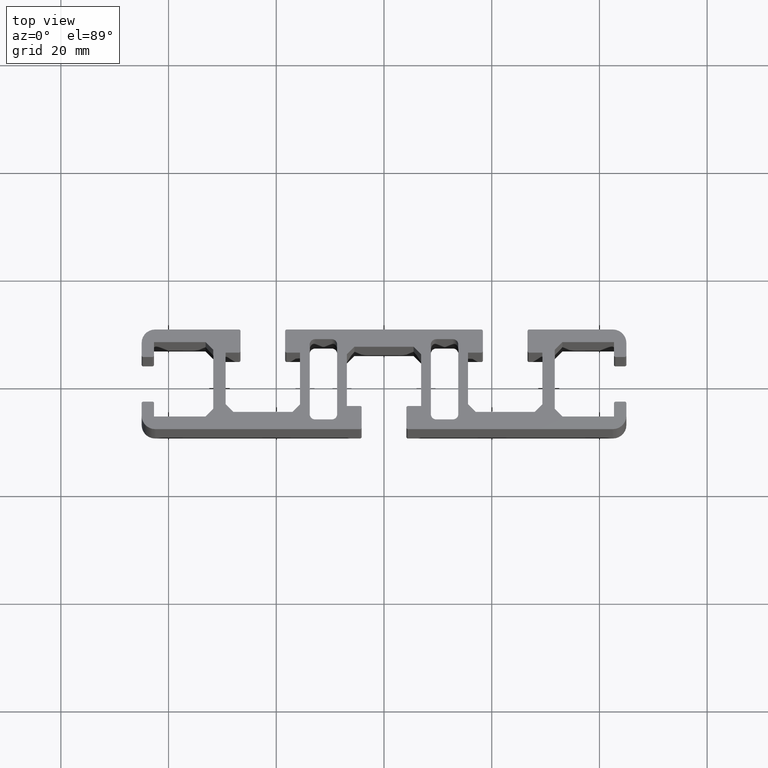
[diagram: clean part render]
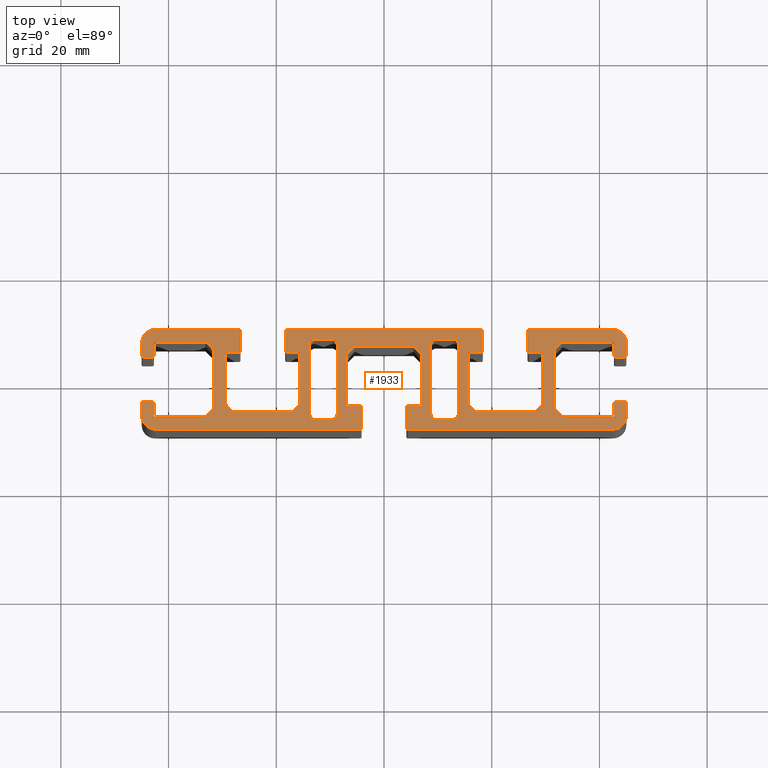
[diagram: same view with one face highlighted and labeled with its STEP entity id]
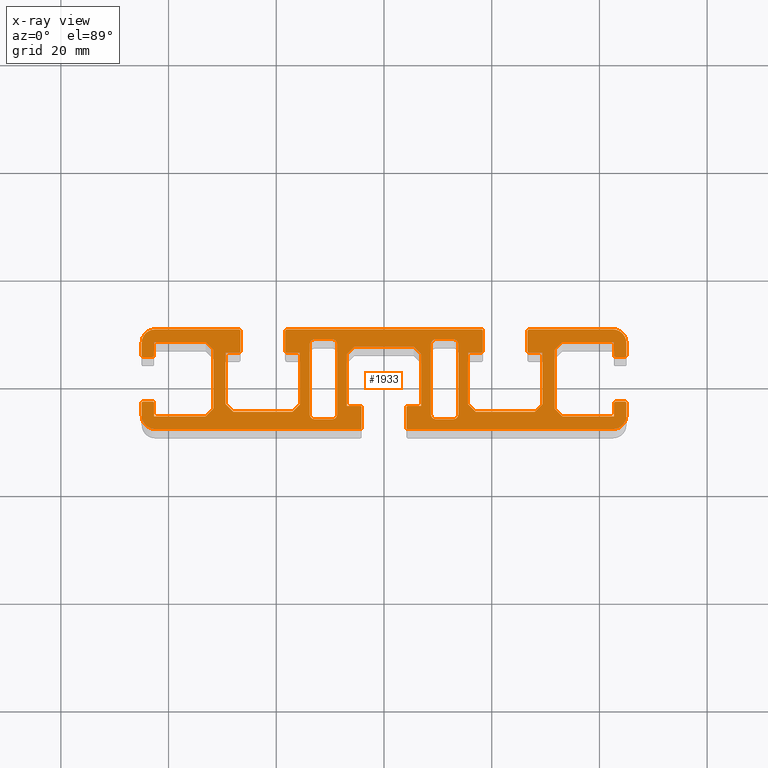
[diagram: x-ray of the same camera — body ghosted, the highlighted face saturated]
A machine part, top view. The second image highlights one B-rep face of the part: STEP entity #1933.
The next image is the same camera in x-ray: the body ghosted, the highlighted face saturated — about 0% of this face is hidden behind the body in this view.
In plain terms, the highlighted planar face has unit normal (0, 0, 1).
Its self-contained STEP definition (entity closure, byte-faithful):
#15=FACE_BOUND('',#268,.T.);
#16=FACE_BOUND('',#269,.T.);
#79=PLANE('',#2087);
#171=FACE_OUTER_BOUND('',#267,.T.);
#267=EDGE_LOOP('',(#1601,#1602,#1603,#1604,#1605,#1606,#1607,#1608,#1609,
#1610,#1611,#1612,#1613,#1614,#1615,#1616,#1617,#1618,#1619,#1620,#1621,
#1622,#1623,#1624,#1625,#1626,#1627,#1628,#1629,#1630,#1631,#1632,#1633,
#1634,#1635,#1636,#1637,#1638,#1639,#1640,#1641,#1642,#1643,#1644,#1645,
#1646,#1647,#1648,#1649,#1650,#1651,#1652,#1653,#1654,#1655,#1656,#1657,
#1658,#1659,#1660,#1661,#1662,#1663,#1664,#1665,#1666,#1667,#1668,#1669,
#1670,#1671,#1672,#1673,#1674,#1675,#1676,#1677,#1678));
#268=EDGE_LOOP('',(#1679,#1680,#1681,#1682,#1683,#1684,#1685,#1686));
#269=EDGE_LOOP('',(#1687,#1688,#1689,#1690,#1691,#1692,#1693,#1694));
#281=LINE('',#2655,#499);
#285=LINE('',#2667,#503);
#289=LINE('',#2679,#507);
#293=LINE('',#2690,#511);
#295=LINE('',#2695,#513);
#299=LINE('',#2703,#517);
#303=LINE('',#2715,#521);
#309=LINE('',#2736,#527);
#313=LINE('',#2748,#531);
#316=LINE('',#2754,#534);
#319=LINE('',#2760,#537);
#322=LINE('',#2766,#540);
#325=LINE('',#2771,#543);
#327=LINE('',#2776,#545);
#331=LINE('',#2784,#549);
#334=LINE('',#2790,#552);
#337=LINE('',#2796,#555);
#340=LINE('',#2802,#558);
#344=LINE('',#2814,#562);
#350=LINE('',#2835,#568);
#354=LINE('',#2847,#572);
#357=LINE('',#2852,#575);
#359=LINE('',#2857,#577);
#363=LINE('',#2865,#581);
#367=LINE('',#2877,#585);
#373=LINE('',#2898,#591);
#377=LINE('',#2910,#595);
#380=LINE('',#2916,#598);
#383=LINE('',#2922,#601);
#386=LINE('',#2928,#604);
#389=LINE('',#2933,#607);
#391=LINE('',#2938,#609);
#395=LINE('',#2946,#613);
#398=LINE('',#2952,#616);
#401=LINE('',#2958,#619);
#404=LINE('',#2964,#622);
#408=LINE('',#2976,#626);
#414=LINE('',#2997,#632);
#418=LINE('',#3009,#636);
#421=LINE('',#3014,#639);
#423=LINE('',#3019,#641);
#427=LINE('',#3027,#645);
#431=LINE('',#3039,#649);
#437=LINE('',#3060,#655);
#441=LINE('',#3072,#659);
#444=LINE('',#3078,#662);
#447=LINE('',#3084,#665);
#450=LINE('',#3090,#668);
#453=LINE('',#3095,#671);
#457=LINE('',#3108,#675);
#461=LINE('',#3120,#679);
#465=LINE('',#3132,#683);
#469=LINE('',#3143,#687);
#473=LINE('',#3150,#691);
#476=LINE('',#3156,#694);
#477=LINE('',#3159,#695);
#482=LINE('',#3168,#700);
#485=LINE('',#3174,#703);
#487=LINE('',#3177,#705);
#488=LINE('',#3180,#706);
#491=LINE('',#3189,#709);
#492=LINE('',#3192,#710);
#499=VECTOR('',#2115,12.900000000008);
#503=VECTOR('',#2127,3.100000000008);
#507=VECTOR('',#2139,12.900000000008);
#511=VECTOR('',#2151,3.100000000008);
#513=VECTOR('',#2155,9.58578600000002);
#517=VECTOR('',#2161,2.45);
#521=VECTOR('',#2173,1.70000000000002);
#527=VECTOR('',#2193,1.70000000000002);
#531=VECTOR('',#2205,2.45);
#534=VECTOR('',#2210,9.58578600000002);
#537=VECTOR('',#2215,1.99999991179124);
#540=VECTOR('',#2220,10.971573);
#543=VECTOR('',#2225,2.0000006188979);
#545=VECTOR('',#2229,1.99999920468434);
#549=VECTOR('',#2235,10.971573);
#552=VECTOR('',#2240,1.99999991179125);
#555=VECTOR('',#2245,9.58578699999999);
#558=VECTOR('',#2250,2.45);
#562=VECTOR('',#2262,1.69999999999999);
#568=VECTOR('',#2282,1.69999999999999);
#572=VECTOR('',#2294,2.45);
#575=VECTOR('',#2299,9.58578699999999);
#577=VECTOR('',#2303,9.585786);
#581=VECTOR('',#2309,2.45000000000002);
#585=VECTOR('',#2321,3.7);
#591=VECTOR('',#2341,3.7);
#595=VECTOR('',#2353,2.45);
#598=VECTOR('',#2358,9.585786);
#601=VECTOR('',#2363,2.00000061889791);
#604=VECTOR('',#2368,10.971572);
#607=VECTOR('',#2373,2.00000061889792);
#609=VECTOR('',#2377,1.99999991179126);
#613=VECTOR('',#2383,10.971572);
#616=VECTOR('',#2388,1.99999991179126);
#619=VECTOR('',#2393,9.58578700000001);
#622=VECTOR('',#2398,2.45000000000001);
#626=VECTOR('',#2410,3.7);
#632=VECTOR('',#2430,3.7);
#636=VECTOR('',#2442,2.44999999999999);
#639=VECTOR('',#2447,9.585787);
#641=VECTOR('',#2451,9.585787);
#645=VECTOR('',#2457,2.45);
#649=VECTOR('',#2469,3.7);
#655=VECTOR('',#2489,3.7);
#659=VECTOR('',#2501,2.45);
#662=VECTOR('',#2506,9.585787);
#665=VECTOR('',#2511,1.99999991179125);
#668=VECTOR('',#2516,10.971572);
#671=VECTOR('',#2521,1.99999991179125);
#675=VECTOR('',#2533,12.900000000008);
#679=VECTOR('',#2545,3.100000000008);
#683=VECTOR('',#2557,12.900000000008);
#687=VECTOR('',#2569,3.100000000008);
#691=VECTOR('',#2575,2.29999999999999);
#694=VECTOR('',#2580,2.29999999999999);
#695=VECTOR('',#2583,2.30000000000059);
#700=VECTOR('',#2590,38.0462799999994);
#703=VECTOR('',#2595,15.5537199999994);
#705=VECTOR('',#2599,36.1);
#706=VECTOR('',#2602,15.5462800000006);
#709=VECTOR('',#2613,38.0537200000006);
#710=VECTOR('',#2616,2.30000000000058);
#715=CIRCLE('',#1944,0.999999999996);
#717=CIRCLE('',#1948,0.999999999996001);
#719=CIRCLE('',#1952,0.999999999996);
#721=CIRCLE('',#1956,0.999999999996);
#723=CIRCLE('',#1962,0.2999999999994);
#725=CIRCLE('',#1966,0.299999999999391);
#727=CIRCLE('',#1969,0.2999999999994);
#729=CIRCLE('',#1973,0.299999999999391);
#731=CIRCLE('',#1986,0.299999999999406);
#733=CIRCLE('',#1990,0.2999999999994);
#735=CIRCLE('',#1993,0.299999999999406);
#737=CIRCLE('',#1997,0.2999999999994);
#739=CIRCLE('',#2004,0.299999999999391);
#741=CIRCLE('',#2008,0.299999999999402);
#743=CIRCLE('',#2011,0.299999999999399);
#745=CIRCLE('',#2015,0.299999999999402);
#747=CIRCLE('',#2028,0.299999999999397);
#749=CIRCLE('',#2032,0.299999999999391);
#751=CIRCLE('',#2035,0.299999999999397);
#753=CIRCLE('',#2039,0.299999999999406);
#755=CIRCLE('',#2046,0.299999999999399);
#757=CIRCLE('',#2050,0.299999999999397);
#759=CIRCLE('',#2053,0.299999999999399);
#761=CIRCLE('',#2057,0.2999999999994);
#763=CIRCLE('',#2065,0.999999999996);
#765=CIRCLE('',#2069,0.999999999996);
#767=CIRCLE('',#2073,0.999999999996);
#769=CIRCLE('',#2077,0.999999999996);
#771=CIRCLE('',#2088,2.50000000000001);
#772=CIRCLE('',#2089,2.50000000000001);
#773=CIRCLE('',#2090,2.49999999999999);
#774=CIRCLE('',#2091,2.50000000000001);
#779=VERTEX_POINT('',#2645);
#780=VERTEX_POINT('',#2646);
#783=VERTEX_POINT('',#2654);
#785=VERTEX_POINT('',#2660);
#787=VERTEX_POINT('',#2666);
#789=VERTEX_POINT('',#2672);
#791=VERTEX_POINT('',#2678);
#793=VERTEX_POINT('',#2684);
#795=VERTEX_POINT('',#2693);
#796=VERTEX_POINT('',#2694);
#799=VERTEX_POINT('',#2702);
#801=VERTEX_POINT('',#2708);
#803=VERTEX_POINT('',#2714);
#805=VERTEX_POINT('',#2720);
#807=VERTEX_POINT('',#2726);
#808=VERTEX_POINT('',#2727);
#811=VERTEX_POINT('',#2735);
#813=VERTEX_POINT('',#2741);
#815=VERTEX_POINT('',#2747);
#817=VERTEX_POINT('',#2753);
#819=VERTEX_POINT('',#2759);
#821=VERTEX_POINT('',#2765);
#823=VERTEX_POINT('',#2774);
#824=VERTEX_POINT('',#2775);
#827=VERTEX_POINT('',#2783);
#829=VERTEX_POINT('',#2789);
#831=VERTEX_POINT('',#2795);
#833=VERTEX_POINT('',#2801);
#835=VERTEX_POINT('',#2807);
#837=VERTEX_POINT('',#2813);
#839=VERTEX_POINT('',#2819);
#841=VERTEX_POINT('',#2825);
#842=VERTEX_POINT('',#2826);
#845=VERTEX_POINT('',#2834);
#847=VERTEX_POINT('',#2840);
#849=VERTEX_POINT('',#2846);
#851=VERTEX_POINT('',#2855);
#852=VERTEX_POINT('',#2856);
#855=VERTEX_POINT('',#2864);
#857=VERTEX_POINT('',#2870);
#859=VERTEX_POINT('',#2876);
#861=VERTEX_POINT('',#2882);
#863=VERTEX_POINT('',#2888);
#864=VERTEX_POINT('',#2889);
#867=VERTEX_POINT('',#2897);
#869=VERTEX_POINT('',#2903);
#871=VERTEX_POINT('',#2909);
#873=VERTEX_POINT('',#2915);
#875=VERTEX_POINT('',#2921);
#877=VERTEX_POINT('',#2927);
#879=VERTEX_POINT('',#2936);
#880=VERTEX_POINT('',#2937);
#883=VERTEX_POINT('',#2945);
#885=VERTEX_POINT('',#2951);
#887=VERTEX_POINT('',#2957);
#889=VERTEX_POINT('',#2963);
#891=VERTEX_POINT('',#2969);
#893=VERTEX_POINT('',#2975);
#895=VERTEX_POINT('',#2981);
#897=VERTEX_POINT('',#2987);
#898=VERTEX_POINT('',#2988);
#901=VERTEX_POINT('',#2996);
#903=VERTEX_POINT('',#3002);
#905=VERTEX_POINT('',#3008);
#907=VERTEX_POINT('',#3017);
#908=VERTEX_POINT('',#3018);
#911=VERTEX_POINT('',#3026);
#913=VERTEX_POINT('',#3032);
#915=VERTEX_POINT('',#3038);
#917=VERTEX_POINT('',#3044);
#919=VERTEX_POINT('',#3050);
#920=VERTEX_POINT('',#3051);
#923=VERTEX_POINT('',#3059);
#925=VERTEX_POINT('',#3065);
#927=VERTEX_POINT('',#3071);
#929=VERTEX_POINT('',#3077);
#931=VERTEX_POINT('',#3083);
#933=VERTEX_POINT('',#3089);
#935=VERTEX_POINT('',#3098);
#936=VERTEX_POINT('',#3099);
#939=VERTEX_POINT('',#3107);
#941=VERTEX_POINT('',#3113);
#943=VERTEX_POINT('',#3119);
#945=VERTEX_POINT('',#3125);
#947=VERTEX_POINT('',#3131);
#949=VERTEX_POINT('',#3137);
#952=VERTEX_POINT('',#3148);
#954=VERTEX_POINT('',#3154);
#955=VERTEX_POINT('',#3158);
#958=VERTEX_POINT('',#3166);
#960=VERTEX_POINT('',#3172);
#961=VERTEX_POINT('',#3179);
#963=VERTEX_POINT('',#3187);
#964=VERTEX_POINT('',#3190);
#967=EDGE_CURVE('',#779,#780,#715,.T.);
#971=EDGE_CURVE('',#780,#783,#281,.T.);
#974=EDGE_CURVE('',#783,#785,#717,.T.);
#977=EDGE_CURVE('',#785,#787,#285,.T.);
#980=EDGE_CURVE('',#787,#789,#719,.T.);
#983=EDGE_CURVE('',#789,#791,#289,.T.);
#986=EDGE_CURVE('',#791,#793,#721,.T.);
#989=EDGE_CURVE('',#793,#779,#293,.T.);
#991=EDGE_CURVE('',#795,#796,#295,.T.);
#995=EDGE_CURVE('',#796,#799,#299,.T.);
#998=EDGE_CURVE('',#799,#801,#723,.T.);
#1001=EDGE_CURVE('',#801,#803,#303,.T.);
#1004=EDGE_CURVE('',#803,#805,#725,.T.);
#1007=EDGE_CURVE('',#807,#808,#727,.T.);
#1011=EDGE_CURVE('',#808,#811,#309,.T.);
#1014=EDGE_CURVE('',#811,#813,#729,.T.);
#1017=EDGE_CURVE('',#813,#815,#313,.T.);
#1020=EDGE_CURVE('',#815,#817,#316,.T.);
#1023=EDGE_CURVE('',#817,#819,#319,.T.);
#1026=EDGE_CURVE('',#819,#821,#322,.T.);
#1029=EDGE_CURVE('',#821,#795,#325,.T.);
#1031=EDGE_CURVE('',#823,#824,#327,.T.);
#1035=EDGE_CURVE('',#827,#823,#331,.T.);
#1038=EDGE_CURVE('',#829,#827,#334,.T.);
#1041=EDGE_CURVE('',#831,#829,#337,.T.);
#1044=EDGE_CURVE('',#833,#831,#340,.T.);
#1047=EDGE_CURVE('',#835,#833,#731,.T.);
#1050=EDGE_CURVE('',#837,#835,#344,.T.);
#1053=EDGE_CURVE('',#839,#837,#733,.T.);
#1056=EDGE_CURVE('',#841,#842,#735,.T.);
#1060=EDGE_CURVE('',#845,#841,#350,.T.);
#1063=EDGE_CURVE('',#847,#845,#737,.T.);
#1066=EDGE_CURVE('',#849,#847,#354,.T.);
#1069=EDGE_CURVE('',#824,#849,#357,.T.);
#1071=EDGE_CURVE('',#851,#852,#359,.T.);
#1075=EDGE_CURVE('',#852,#855,#363,.T.);
#1078=EDGE_CURVE('',#855,#857,#739,.T.);
#1081=EDGE_CURVE('',#857,#859,#367,.T.);
#1084=EDGE_CURVE('',#859,#861,#741,.T.);
#1087=EDGE_CURVE('',#863,#864,#743,.T.);
#1091=EDGE_CURVE('',#864,#867,#373,.T.);
#1094=EDGE_CURVE('',#867,#869,#745,.T.);
#1097=EDGE_CURVE('',#869,#871,#377,.T.);
#1100=EDGE_CURVE('',#871,#873,#380,.T.);
#1103=EDGE_CURVE('',#873,#875,#383,.T.);
#1106=EDGE_CURVE('',#875,#877,#386,.T.);
#1109=EDGE_CURVE('',#877,#851,#389,.T.);
#1111=EDGE_CURVE('',#879,#880,#391,.T.);
#1115=EDGE_CURVE('',#883,#879,#395,.T.);
#1118=EDGE_CURVE('',#885,#883,#398,.T.);
#1121=EDGE_CURVE('',#887,#885,#401,.T.);
#1124=EDGE_CURVE('',#889,#887,#404,.T.);
#1127=EDGE_CURVE('',#891,#889,#747,.T.);
#1130=EDGE_CURVE('',#893,#891,#408,.T.);
#1133=EDGE_CURVE('',#895,#893,#749,.T.);
#1136=EDGE_CURVE('',#897,#898,#751,.T.);
#1140=EDGE_CURVE('',#901,#897,#414,.T.);
#1143=EDGE_CURVE('',#903,#901,#753,.T.);
#1146=EDGE_CURVE('',#905,#903,#418,.T.);
#1149=EDGE_CURVE('',#880,#905,#421,.T.);
#1151=EDGE_CURVE('',#907,#908,#423,.T.);
#1155=EDGE_CURVE('',#908,#911,#427,.T.);
#1158=EDGE_CURVE('',#911,#913,#755,.T.);
#1161=EDGE_CURVE('',#913,#915,#431,.T.);
#1164=EDGE_CURVE('',#915,#917,#757,.T.);
#1167=EDGE_CURVE('',#919,#920,#759,.T.);
#1171=EDGE_CURVE('',#920,#923,#437,.T.);
#1174=EDGE_CURVE('',#923,#925,#761,.T.);
#1177=EDGE_CURVE('',#925,#927,#441,.T.);
#1180=EDGE_CURVE('',#927,#929,#444,.T.);
#1183=EDGE_CURVE('',#929,#931,#447,.T.);
#1186=EDGE_CURVE('',#931,#933,#450,.T.);
#1189=EDGE_CURVE('',#933,#907,#453,.T.);
#1191=EDGE_CURVE('',#935,#936,#763,.T.);
#1195=EDGE_CURVE('',#939,#935,#457,.T.);
#1198=EDGE_CURVE('',#941,#939,#765,.T.);
#1201=EDGE_CURVE('',#943,#941,#461,.T.);
#1204=EDGE_CURVE('',#945,#943,#767,.T.);
#1207=EDGE_CURVE('',#947,#945,#465,.T.);
#1210=EDGE_CURVE('',#949,#947,#769,.T.);
#1213=EDGE_CURVE('',#936,#949,#469,.T.);
#1217=EDGE_CURVE('',#952,#805,#473,.T.);
#1220=EDGE_CURVE('',#954,#842,#476,.T.);
#1221=EDGE_CURVE('',#839,#955,#477,.T.);
#1226=EDGE_CURVE('',#958,#861,#482,.T.);
#1229=EDGE_CURVE('',#960,#917,#485,.T.);
#1231=EDGE_CURVE('',#919,#898,#487,.T.);
#1232=EDGE_CURVE('',#895,#961,#488,.T.);
#1235=EDGE_CURVE('',#961,#952,#771,.T.);
#1236=EDGE_CURVE('',#955,#960,#772,.T.);
#1237=EDGE_CURVE('',#963,#954,#773,.T.);
#1238=EDGE_CURVE('',#863,#963,#491,.T.);
#1239=EDGE_CURVE('',#964,#958,#774,.T.);
#1240=EDGE_CURVE('',#807,#964,#492,.T.);
#1601=ORIENTED_EDGE('',*,*,#1007,.T.);
#1602=ORIENTED_EDGE('',*,*,#1011,.T.);
#1603=ORIENTED_EDGE('',*,*,#1014,.T.);
#1604=ORIENTED_EDGE('',*,*,#1017,.T.);
#1605=ORIENTED_EDGE('',*,*,#1020,.T.);
#1606=ORIENTED_EDGE('',*,*,#1023,.T.);
#1607=ORIENTED_EDGE('',*,*,#1026,.T.);
#1608=ORIENTED_EDGE('',*,*,#1029,.T.);
#1609=ORIENTED_EDGE('',*,*,#991,.T.);
#1610=ORIENTED_EDGE('',*,*,#995,.T.);
#1611=ORIENTED_EDGE('',*,*,#998,.T.);
#1612=ORIENTED_EDGE('',*,*,#1001,.T.);
#1613=ORIENTED_EDGE('',*,*,#1004,.T.);
#1614=ORIENTED_EDGE('',*,*,#1217,.F.);
#1615=ORIENTED_EDGE('',*,*,#1235,.F.);
#1616=ORIENTED_EDGE('',*,*,#1232,.F.);
#1617=ORIENTED_EDGE('',*,*,#1133,.T.);
#1618=ORIENTED_EDGE('',*,*,#1130,.T.);
#1619=ORIENTED_EDGE('',*,*,#1127,.T.);
#1620=ORIENTED_EDGE('',*,*,#1124,.T.);
#1621=ORIENTED_EDGE('',*,*,#1121,.T.);
#1622=ORIENTED_EDGE('',*,*,#1118,.T.);
#1623=ORIENTED_EDGE('',*,*,#1115,.T.);
#1624=ORIENTED_EDGE('',*,*,#1111,.T.);
#1625=ORIENTED_EDGE('',*,*,#1149,.T.);
#1626=ORIENTED_EDGE('',*,*,#1146,.T.);
#1627=ORIENTED_EDGE('',*,*,#1143,.T.);
#1628=ORIENTED_EDGE('',*,*,#1140,.T.);
#1629=ORIENTED_EDGE('',*,*,#1136,.T.);
#1630=ORIENTED_EDGE('',*,*,#1231,.F.);
#1631=ORIENTED_EDGE('',*,*,#1167,.T.);
#1632=ORIENTED_EDGE('',*,*,#1171,.T.);
#1633=ORIENTED_EDGE('',*,*,#1174,.T.);
#1634=ORIENTED_EDGE('',*,*,#1177,.T.);
#1635=ORIENTED_EDGE('',*,*,#1180,.T.);
#1636=ORIENTED_EDGE('',*,*,#1183,.T.);
#1637=ORIENTED_EDGE('',*,*,#1186,.T.);
#1638=ORIENTED_EDGE('',*,*,#1189,.T.);
#1639=ORIENTED_EDGE('',*,*,#1151,.T.);
#1640=ORIENTED_EDGE('',*,*,#1155,.T.);
#1641=ORIENTED_EDGE('',*,*,#1158,.T.);
#1642=ORIENTED_EDGE('',*,*,#1161,.T.);
#1643=ORIENTED_EDGE('',*,*,#1164,.T.);
#1644=ORIENTED_EDGE('',*,*,#1229,.F.);
#1645=ORIENTED_EDGE('',*,*,#1236,.F.);
#1646=ORIENTED_EDGE('',*,*,#1221,.F.);
#1647=ORIENTED_EDGE('',*,*,#1053,.T.);
#1648=ORIENTED_EDGE('',*,*,#1050,.T.);
#1649=ORIENTED_EDGE('',*,*,#1047,.T.);
#1650=ORIENTED_EDGE('',*,*,#1044,.T.);
#1651=ORIENTED_EDGE('',*,*,#1041,.T.);
#1652=ORIENTED_EDGE('',*,*,#1038,.T.);
#1653=ORIENTED_EDGE('',*,*,#1035,.T.);
#1654=ORIENTED_EDGE('',*,*,#1031,.T.);
#1655=ORIENTED_EDGE('',*,*,#1069,.T.);
#1656=ORIENTED_EDGE('',*,*,#1066,.T.);
#1657=ORIENTED_EDGE('',*,*,#1063,.T.);
#1658=ORIENTED_EDGE('',*,*,#1060,.T.);
#1659=ORIENTED_EDGE('',*,*,#1056,.T.);
#1660=ORIENTED_EDGE('',*,*,#1220,.F.);
#1661=ORIENTED_EDGE('',*,*,#1237,.F.);
#1662=ORIENTED_EDGE('',*,*,#1238,.F.);
#1663=ORIENTED_EDGE('',*,*,#1087,.T.);
#1664=ORIENTED_EDGE('',*,*,#1091,.T.);
#1665=ORIENTED_EDGE('',*,*,#1094,.T.);
#1666=ORIENTED_EDGE('',*,*,#1097,.T.);
#1667=ORIENTED_EDGE('',*,*,#1100,.T.);
#1668=ORIENTED_EDGE('',*,*,#1103,.T.);
#1669=ORIENTED_EDGE('',*,*,#1106,.T.);
#1670=ORIENTED_EDGE('',*,*,#1109,.T.);
#1671=ORIENTED_EDGE('',*,*,#1071,.T.);
#1672=ORIENTED_EDGE('',*,*,#1075,.T.);
#1673=ORIENTED_EDGE('',*,*,#1078,.T.);
#1674=ORIENTED_EDGE('',*,*,#1081,.T.);
#1675=ORIENTED_EDGE('',*,*,#1084,.T.);
#1676=ORIENTED_EDGE('',*,*,#1226,.F.);
#1677=ORIENTED_EDGE('',*,*,#1239,.F.);
#1678=ORIENTED_EDGE('',*,*,#1240,.F.);
#1679=ORIENTED_EDGE('',*,*,#1191,.T.);
#1680=ORIENTED_EDGE('',*,*,#1213,.T.);
#1681=ORIENTED_EDGE('',*,*,#1210,.T.);
#1682=ORIENTED_EDGE('',*,*,#1207,.T.);
#1683=ORIENTED_EDGE('',*,*,#1204,.T.);
#1684=ORIENTED_EDGE('',*,*,#1201,.T.);
#1685=ORIENTED_EDGE('',*,*,#1198,.T.);
#1686=ORIENTED_EDGE('',*,*,#1195,.T.);
#1687=ORIENTED_EDGE('',*,*,#967,.T.);
#1688=ORIENTED_EDGE('',*,*,#971,.T.);
#1689=ORIENTED_EDGE('',*,*,#974,.T.);
#1690=ORIENTED_EDGE('',*,*,#977,.T.);
#1691=ORIENTED_EDGE('',*,*,#980,.T.);
#1692=ORIENTED_EDGE('',*,*,#983,.T.);
#1693=ORIENTED_EDGE('',*,*,#986,.T.);
#1694=ORIENTED_EDGE('',*,*,#989,.T.);
#1933=ADVANCED_FACE('',(#171,#15,#16),#79,.T.);
#1944=AXIS2_PLACEMENT_3D('',#2647,#2107,#2108);
#1948=AXIS2_PLACEMENT_3D('',#2661,#2120,#2121);
#1952=AXIS2_PLACEMENT_3D('',#2673,#2132,#2133);
#1956=AXIS2_PLACEMENT_3D('',#2685,#2144,#2145);
#1962=AXIS2_PLACEMENT_3D('',#2709,#2166,#2167);
#1966=AXIS2_PLACEMENT_3D('',#2721,#2178,#2179);
#1969=AXIS2_PLACEMENT_3D('',#2728,#2185,#2186);
#1973=AXIS2_PLACEMENT_3D('',#2742,#2198,#2199);
#1986=AXIS2_PLACEMENT_3D('',#2808,#2255,#2256);
#1990=AXIS2_PLACEMENT_3D('',#2820,#2267,#2268);
#1993=AXIS2_PLACEMENT_3D('',#2827,#2274,#2275);
#1997=AXIS2_PLACEMENT_3D('',#2841,#2287,#2288);
#2004=AXIS2_PLACEMENT_3D('',#2871,#2314,#2315);
#2008=AXIS2_PLACEMENT_3D('',#2883,#2326,#2327);
#2011=AXIS2_PLACEMENT_3D('',#2890,#2333,#2334);
#2015=AXIS2_PLACEMENT_3D('',#2904,#2346,#2347);
#2028=AXIS2_PLACEMENT_3D('',#2970,#2403,#2404);
#2032=AXIS2_PLACEMENT_3D('',#2982,#2415,#2416);
#2035=AXIS2_PLACEMENT_3D('',#2989,#2422,#2423);
#2039=AXIS2_PLACEMENT_3D('',#3003,#2435,#2436);
#2046=AXIS2_PLACEMENT_3D('',#3033,#2462,#2463);
#2050=AXIS2_PLACEMENT_3D('',#3045,#2474,#2475);
#2053=AXIS2_PLACEMENT_3D('',#3052,#2481,#2482);
#2057=AXIS2_PLACEMENT_3D('',#3066,#2494,#2495);
#2065=AXIS2_PLACEMENT_3D('',#3100,#2525,#2526);
#2069=AXIS2_PLACEMENT_3D('',#3114,#2538,#2539);
#2073=AXIS2_PLACEMENT_3D('',#3126,#2550,#2551);
#2077=AXIS2_PLACEMENT_3D('',#3138,#2562,#2563);
#2087=AXIS2_PLACEMENT_3D('',#3184,#2605,#2606);
#2088=AXIS2_PLACEMENT_3D('',#3185,#2607,#2608);
#2089=AXIS2_PLACEMENT_3D('',#3186,#2609,#2610);
#2090=AXIS2_PLACEMENT_3D('',#3188,#2611,#2612);
#2091=AXIS2_PLACEMENT_3D('',#3191,#2614,#2615);
#2107=DIRECTION('center_axis',(0.,0.,-1.));
#2108=DIRECTION('ref_axis',(1.,0.,0.));
#2115=DIRECTION('',(0.,-1.,0.));
#2120=DIRECTION('center_axis',(0.,0.,-1.));
#2121=DIRECTION('ref_axis',(0.,-1.,0.));
#2127=DIRECTION('',(-1.,-3.58136459555578E-16,0.));
#2132=DIRECTION('center_axis',(0.,0.,-1.));
#2133=DIRECTION('ref_axis',(-1.,1.1102230246296E-15,0.));
#2139=DIRECTION('',(0.,1.,0.));
#2144=DIRECTION('center_axis',(0.,0.,-1.));
#2145=DIRECTION('ref_axis',(0.,1.,0.));
#2151=DIRECTION('',(1.,0.,0.));
#2155=DIRECTION('',(1.,0.,0.));
#2161=DIRECTION('',(4.78528781226189E-13,-1.,0.));
#2166=DIRECTION('center_axis',(0.,0.,1.));
#2167=DIRECTION('ref_axis',(1.,-2.00025181603694E-12,0.));
#2173=DIRECTION('',(1.,7.0629776537182E-13,0.));
#2178=DIRECTION('center_axis',(0.,0.,1.));
#2179=DIRECTION('ref_axis',(1.98359847066764E-12,1.,0.));
#2185=DIRECTION('center_axis',(0.,0.,1.));
#2186=DIRECTION('ref_axis',(-1.,4.6259292694158E-14,0.));
#2193=DIRECTION('',(-1.,-7.0629776537182E-13,0.));
#2198=DIRECTION('center_axis',(0.,0.,1.));
#2199=DIRECTION('ref_axis',(-1.95399252334424E-12,-1.,0.));
#2205=DIRECTION('',(0.,-1.,0.));
#2210=DIRECTION('',(-1.,0.,0.));
#2215=DIRECTION('',(-0.707107031186512,0.707106531186495,0.));
#2220=DIRECTION('',(0.,1.,0.));
#2225=DIRECTION('',(0.707106781186544,0.707106781186551,0.));
#2229=DIRECTION('',(-0.707106781186549,-0.707106781186546,0.));
#2235=DIRECTION('',(0.,-1.,0.));
#2240=DIRECTION('',(0.707106531186492,-0.707107031186514,0.));
#2245=DIRECTION('',(1.,0.,0.));
#2250=DIRECTION('',(0.,1.,0.));
#2255=DIRECTION('center_axis',(0.,0.,1.));
#2256=DIRECTION('ref_axis',(2.01320441799094E-12,1.,0.));
#2262=DIRECTION('',(1.,7.04338548269552E-13,0.));
#2267=DIRECTION('center_axis',(0.,0.,1.));
#2268=DIRECTION('ref_axis',(1.,2.40548322009664E-14,0.));
#2274=DIRECTION('center_axis',(0.,0.,1.));
#2275=DIRECTION('ref_axis',(-2.01320441799094E-12,-1.,0.));
#2282=DIRECTION('',(-1.,-7.06297765371831E-13,0.));
#2287=DIRECTION('center_axis',(0.,0.,1.));
#2288=DIRECTION('ref_axis',(-1.,2.00210218774465E-12,0.));
#2294=DIRECTION('',(-4.9302965338456E-13,1.,0.));
#2299=DIRECTION('',(-1.,0.,0.));
#2303=DIRECTION('',(0.,-1.,0.));
#2309=DIRECTION('',(-1.,-4.91443620492234E-13,0.));
#2314=DIRECTION('center_axis',(0.,0.,1.));
#2315=DIRECTION('ref_axis',(-1.97249624042136E-12,-1.,0.));
#2321=DIRECTION('',(3.19714225064353E-13,-1.,0.));
#2326=DIRECTION('center_axis',(0.,0.,1.));
#2327=DIRECTION('ref_axis',(1.,-2.00950367457554E-12,0.));
#2333=DIRECTION('center_axis',(0.,0.,1.));
#2334=DIRECTION('ref_axis',(-4.2558549277213E-14,1.,0.));
#2341=DIRECTION('',(-3.23615008664387E-13,1.,0.));
#2346=DIRECTION('center_axis',(0.,0.,1.));
#2347=DIRECTION('ref_axis',(-1.,2.00580293116012E-12,0.));
#2353=DIRECTION('',(-1.,0.,0.));
#2358=DIRECTION('',(0.,1.,0.));
#2363=DIRECTION('',(0.707106781186548,0.707106781186547,0.));
#2368=DIRECTION('',(1.,0.,0.));
#2373=DIRECTION('',(0.707106781186551,-0.707106781186544,0.));
#2377=DIRECTION('',(-0.707107031186519,0.707106531186488,0.));
#2383=DIRECTION('',(-1.,0.,0.));
#2388=DIRECTION('',(-0.707107031186519,-0.707106531186488,0.));
#2393=DIRECTION('',(0.,-1.,0.));
#2398=DIRECTION('',(1.,-6.79728382423561E-16,0.));
#2403=DIRECTION('center_axis',(0.,0.,1.));
#2404=DIRECTION('ref_axis',(1.,-1.99470070091386E-12,0.));
#2410=DIRECTION('',(3.19264134648964E-13,-1.,0.));
#2415=DIRECTION('center_axis',(0.,0.,1.));
#2416=DIRECTION('ref_axis',(-1.48029736621324E-14,-1.,0.));
#2422=DIRECTION('center_axis',(0.,0.,1.));
#2423=DIRECTION('ref_axis',(-1.,1.99470070091388E-12,0.));
#2430=DIRECTION('',(-3.27665822402884E-13,1.,0.));
#2435=DIRECTION('center_axis',(0.,0.,1.));
#2436=DIRECTION('ref_axis',(2.01320441799094E-12,1.,0.));
#2442=DIRECTION('',(1.,4.88498130835071E-13,0.));
#2447=DIRECTION('',(0.,1.,0.));
#2451=DIRECTION('',(0.,1.,0.));
#2457=DIRECTION('',(1.,4.91443620492238E-13,0.));
#2462=DIRECTION('center_axis',(0.,0.,1.));
#2463=DIRECTION('ref_axis',(1.98359847066759E-12,1.,0.));
#2469=DIRECTION('',(-3.24065099079776E-13,1.,0.));
#2474=DIRECTION('center_axis',(0.,0.,1.));
#2475=DIRECTION('ref_axis',(-1.,1.99470070091389E-12,0.));
#2481=DIRECTION('center_axis',(0.,0.,1.));
#2482=DIRECTION('ref_axis',(-5.18104078174654E-14,-1.,0.));
#2489=DIRECTION('',(3.24065099079776E-13,-1.,0.));
#2494=DIRECTION('center_axis',(0.,0.,1.));
#2495=DIRECTION('ref_axis',(1.,-2.00580293116014E-12,0.));
#2501=DIRECTION('',(1.,-6.79728382423564E-16,0.));
#2506=DIRECTION('',(0.,-1.,0.));
#2511=DIRECTION('',(-0.707107031186514,-0.707106531186493,0.));
#2516=DIRECTION('',(-1.,0.,0.));
#2521=DIRECTION('',(-0.707107031186513,0.707106531186493,0.));
#2525=DIRECTION('center_axis',(0.,0.,-1.));
#2526=DIRECTION('ref_axis',(0.,1.,0.));
#2533=DIRECTION('',(0.,1.,0.));
#2538=DIRECTION('center_axis',(0.,0.,-1.));
#2539=DIRECTION('ref_axis',(-1.,0.,0.));
#2545=DIRECTION('',(-1.,3.58136459555578E-16,0.));
#2550=DIRECTION('center_axis',(0.,0.,-1.));
#2551=DIRECTION('ref_axis',(0.,-1.,0.));
#2557=DIRECTION('',(0.,-1.,0.));
#2562=DIRECTION('center_axis',(0.,0.,-1.));
#2563=DIRECTION('ref_axis',(1.,-1.1102230246296E-15,0.));
#2569=DIRECTION('',(1.,0.,0.));
#2575=DIRECTION('',(0.,-1.,0.));
#2580=DIRECTION('',(0.,1.,0.));
#2583=DIRECTION('',(0.,1.,0.));
#2590=DIRECTION('',(-1.,0.,0.));
#2595=DIRECTION('',(1.,0.,0.));
#2599=DIRECTION('',(1.,0.,0.));
#2602=DIRECTION('',(1.,0.,0.));
#2605=DIRECTION('center_axis',(0.,0.,1.));
#2606=DIRECTION('ref_axis',(1.,0.,0.));
#2607=DIRECTION('center_axis',(0.,0.,-1.));
#2608=DIRECTION('ref_axis',(-1.,0.,0.));
#2609=DIRECTION('center_axis',(0.,0.,-1.));
#2610=DIRECTION('ref_axis',(0.,-1.,0.));
#2611=DIRECTION('center_axis',(0.,0.,-1.));
#2612=DIRECTION('ref_axis',(1.,0.,0.));
#2613=DIRECTION('',(-1.,0.,0.));
#2614=DIRECTION('center_axis',(0.,0.,-1.));
#2615=DIRECTION('ref_axis',(0.,1.,0.));
#2616=DIRECTION('',(0.,-1.,0.));
#2645=CARTESIAN_POINT('',(-9.69627999999599,7.45,100.));
#2646=CARTESIAN_POINT('',(-8.69627999999999,6.450000000004,100.));
#2647=CARTESIAN_POINT('Origin',(-9.69627999999599,6.450000000004,100.));
#2654=CARTESIAN_POINT('',(-8.69627999999999,-6.450000000004,100.));
#2655=CARTESIAN_POINT('',(-8.69627999999999,3.225000000002,100.));
#2660=CARTESIAN_POINT('',(-9.69627999999599,-7.45,100.));
#2661=CARTESIAN_POINT('Origin',(-9.69627999999599,-6.450000000004,100.));
#2666=CARTESIAN_POINT('',(-12.796280000004,-7.45,100.));
#2667=CARTESIAN_POINT('',(-4.84813999999799,-7.44999999999999,100.));
#2672=CARTESIAN_POINT('',(-13.79628,-6.450000000004,100.));
#2673=CARTESIAN_POINT('Origin',(-12.796280000004,-6.450000000004,100.));
#2678=CARTESIAN_POINT('',(-13.79628,6.450000000004,100.));
#2679=CARTESIAN_POINT('',(-13.79628,-3.225000000002,100.));
#2684=CARTESIAN_POINT('',(-12.796280000004,7.45,100.));
#2685=CARTESIAN_POINT('Origin',(-12.796280000004,6.450000000004,100.));
#2690=CARTESIAN_POINT('',(-6.398140000002,7.45,100.));
#2693=CARTESIAN_POINT('',(33.114214,6.90000000000001,100.));
#2694=CARTESIAN_POINT('',(42.7,6.90000000000001,100.));
#2695=CARTESIAN_POINT('',(16.557107,6.90000000000001,100.));
#2702=CARTESIAN_POINT('',(42.7000000000012,4.45,100.));
#2703=CARTESIAN_POINT('',(42.7000000000017,3.45000000001022,100.));
#2708=CARTESIAN_POINT('',(43.,4.15,100.));
#2709=CARTESIAN_POINT('Origin',(43.0000000000006,4.4499999999994,100.));
#2714=CARTESIAN_POINT('',(44.7,4.1500000000012,100.));
#2715=CARTESIAN_POINT('',(21.4999999999985,4.14999999998482,100.));
#2720=CARTESIAN_POINT('',(44.99999999999,4.45,100.));
#2721=CARTESIAN_POINT('Origin',(44.7000000000006,4.45000000000059,100.));
#2726=CARTESIAN_POINT('',(44.9999999999901,-4.44999999999942,100.));
#2727=CARTESIAN_POINT('',(44.7,-4.15,100.));
#2728=CARTESIAN_POINT('Origin',(44.6999999999994,-4.4499999999994,100.));
#2735=CARTESIAN_POINT('',(43.,-4.1500000000012,100.));
#2736=CARTESIAN_POINT('',(22.3500000000015,-4.15000000001579,100.));
#2741=CARTESIAN_POINT('',(42.7,-4.45,100.));
#2742=CARTESIAN_POINT('Origin',(42.9999999999994,-4.45000000000059,100.));
#2747=CARTESIAN_POINT('',(42.7,-6.9,100.));
#2748=CARTESIAN_POINT('',(42.7,-2.225,100.));
#2753=CARTESIAN_POINT('',(33.114214,-6.9,100.));
#2754=CARTESIAN_POINT('',(21.35,-6.9,100.));
#2759=CARTESIAN_POINT('',(31.7,-5.485787,100.));
#2760=CARTESIAN_POINT('',(23.1106546461789,3.10355228023869,100.));
#2765=CARTESIAN_POINT('',(31.7,5.485786,100.));
#2766=CARTESIAN_POINT('',(31.7,-2.7428935,100.));
#2771=CARTESIAN_POINT('',(22.4035535000001,-3.81066050000001,100.));
#2774=CARTESIAN_POINT('',(-31.7,-5.48578699999999,100.));
#2775=CARTESIAN_POINT('',(-33.114213,-6.89999999999999,100.));
#2776=CARTESIAN_POINT('',(-22.40355325,3.81065974999999,100.));
#2783=CARTESIAN_POINT('',(-31.7,5.485786,100.));
#2784=CARTESIAN_POINT('',(-31.7,2.742893,100.));
#2789=CARTESIAN_POINT('',(-33.114213,6.90000000000001,100.));
#2790=CARTESIAN_POINT('',(-23.1106656038218,-3.10355446975718,100.));
#2795=CARTESIAN_POINT('',(-42.7,6.90000000000001,100.));
#2796=CARTESIAN_POINT('',(-21.35,6.90000000000001,100.));
#2801=CARTESIAN_POINT('',(-42.7,4.45,100.));
#2802=CARTESIAN_POINT('',(-42.7,2.225,100.));
#2807=CARTESIAN_POINT('',(-43.,4.1500000000012,100.));
#2808=CARTESIAN_POINT('Origin',(-42.9999999999994,4.45000000000061,100.));
#2813=CARTESIAN_POINT('',(-44.7,4.15000000000001,100.));
#2814=CARTESIAN_POINT('',(-22.3500000000015,4.15000000001575,100.));
#2819=CARTESIAN_POINT('',(-44.99999999999,4.4499999999994,100.));
#2820=CARTESIAN_POINT('Origin',(-44.6999999999994,4.44999999999941,100.));
#2825=CARTESIAN_POINT('',(-44.7,-4.1500000000012,100.));
#2826=CARTESIAN_POINT('',(-44.99999999999,-4.45,100.));
#2827=CARTESIAN_POINT('Origin',(-44.7000000000006,-4.4500000000006,100.));
#2834=CARTESIAN_POINT('',(-43.,-4.15,100.));
#2835=CARTESIAN_POINT('',(-21.4999999999985,-4.14999999998481,100.));
#2840=CARTESIAN_POINT('',(-42.7000000000012,-4.45,100.));
#2841=CARTESIAN_POINT('Origin',(-43.0000000000006,-4.4499999999994,100.));
#2846=CARTESIAN_POINT('',(-42.7,-6.89999999999999,100.));
#2847=CARTESIAN_POINT('',(-42.7000000000017,-3.45000000001052,100.));
#2852=CARTESIAN_POINT('',(-16.5571065,-6.89999999999999,100.));
#2855=CARTESIAN_POINT('',(6.90372000000002,4.635786,100.));
#2856=CARTESIAN_POINT('',(6.90372000000002,-4.95,100.));
#2857=CARTESIAN_POINT('',(6.90372000000002,2.317893,100.));
#2864=CARTESIAN_POINT('',(4.45372,-4.9500000000012,100.));
#2865=CARTESIAN_POINT('',(3.45186000000123,-4.95000000000169,100.));
#2870=CARTESIAN_POINT('',(4.15372000000002,-5.25,100.));
#2871=CARTESIAN_POINT('Origin',(4.45371999999941,-5.25000000000059,100.));
#2876=CARTESIAN_POINT('',(4.1537200000012,-8.95,100.));
#2877=CARTESIAN_POINT('',(4.15371999999918,-2.62499999999934,100.));
#2882=CARTESIAN_POINT('',(4.45372000000056,-9.24999999999999,100.));
#2883=CARTESIAN_POINT('Origin',(4.45372000000061,-8.9500000000006,100.));
#2888=CARTESIAN_POINT('',(-4.44627999999938,-9.24999999999999,100.));
#2889=CARTESIAN_POINT('',(-4.14627999999999,-8.95,100.));
#2890=CARTESIAN_POINT('Origin',(-4.44627999999939,-8.9499999999994,100.));
#2897=CARTESIAN_POINT('',(-4.14628000000119,-5.25,100.));
#2898=CARTESIAN_POINT('',(-4.14628000000144,-4.47500000000067,100.));
#2903=CARTESIAN_POINT('',(-4.44627999999999,-4.95,100.));
#2904=CARTESIAN_POINT('Origin',(-4.44628000000059,-5.2499999999994,100.));
#2909=CARTESIAN_POINT('',(-6.89627999999999,-4.95,100.));
#2910=CARTESIAN_POINT('',(-2.22313999999999,-4.95,100.));
#2915=CARTESIAN_POINT('',(-6.89627999999999,4.635786,100.));
#2916=CARTESIAN_POINT('',(-6.89627999999999,-2.475,100.));
#2921=CARTESIAN_POINT('',(-5.48206599999999,6.05,100.));
#2922=CARTESIAN_POINT('',(-6.33115649999999,5.2009095,100.));
#2927=CARTESIAN_POINT('',(5.48950600000001,6.05,100.));
#2928=CARTESIAN_POINT('',(-2.74103299999999,6.05,100.));
#2933=CARTESIAN_POINT('',(5.62962949999999,5.90987650000002,100.));
#2936=CARTESIAN_POINT('',(17.017934,-6.05,100.));
#2937=CARTESIAN_POINT('',(15.60372,-4.635787,100.));
#2938=CARTESIAN_POINT('',(11.2509474916261,-0.283017569500128,100.));
#2945=CARTESIAN_POINT('',(27.989506,-6.05,100.));
#2946=CARTESIAN_POINT('',(13.994753,-6.05,100.));
#2951=CARTESIAN_POINT('',(29.40372,-4.635787,100.));
#2952=CARTESIAN_POINT('',(23.211731552107,-10.8277710694973,100.));
#2957=CARTESIAN_POINT('',(29.40372,4.95,100.));
#2958=CARTESIAN_POINT('',(29.40372,2.475,100.));
#2963=CARTESIAN_POINT('',(26.95372,4.95,100.));
#2964=CARTESIAN_POINT('',(13.47686,4.95000000000001,100.));
#2969=CARTESIAN_POINT('',(26.6537200000012,5.25,100.));
#2970=CARTESIAN_POINT('Origin',(26.9537200000006,5.2499999999994,100.));
#2975=CARTESIAN_POINT('',(26.65372,8.95,100.));
#2976=CARTESIAN_POINT('',(26.6537200000015,4.47500000000426,100.));
#2981=CARTESIAN_POINT('',(26.9537199999994,9.24999999999002,100.));
#2982=CARTESIAN_POINT('Origin',(26.9537199999994,8.94999999999941,100.));
#2987=CARTESIAN_POINT('',(18.3537199999988,8.95,100.));
#2988=CARTESIAN_POINT('',(18.0537199999994,9.24999999999,100.));
#2989=CARTESIAN_POINT('Origin',(18.0537199999994,8.9500000000006,100.));
#2996=CARTESIAN_POINT('',(18.35372,5.25,100.));
#2997=CARTESIAN_POINT('',(18.3537200000009,2.62500000000301,100.));
#3002=CARTESIAN_POINT('',(18.05372,4.9500000000012,100.));
#3003=CARTESIAN_POINT('Origin',(18.0537200000006,5.25000000000061,100.));
#3008=CARTESIAN_POINT('',(15.60372,4.95,100.));
#3009=CARTESIAN_POINT('',(7.8018599999988,4.94999999999619,100.));
#3014=CARTESIAN_POINT('',(15.60372,-2.3178935,100.));
#3017=CARTESIAN_POINT('',(-29.39628,-4.63578699999999,100.));
#3018=CARTESIAN_POINT('',(-29.39628,4.95,100.));
#3019=CARTESIAN_POINT('',(-29.39628,-2.3178935,100.));
#3026=CARTESIAN_POINT('',(-26.94628,4.95000000000121,100.));
#3027=CARTESIAN_POINT('',(-14.6981400000012,4.95000000000723,100.));
#3032=CARTESIAN_POINT('',(-26.64628,5.25000000000001,100.));
#3033=CARTESIAN_POINT('Origin',(-26.9462799999994,5.25000000000061,100.));
#3038=CARTESIAN_POINT('',(-26.6462800000012,8.95,100.));
#3039=CARTESIAN_POINT('',(-26.6462799999991,2.62499999999569,100.));
#3044=CARTESIAN_POINT('',(-26.9462800000006,9.24999999999,100.));
#3045=CARTESIAN_POINT('Origin',(-26.9462800000006,8.9500000000006,100.));
#3050=CARTESIAN_POINT('',(-18.0462800000006,9.24999999999,100.));
#3051=CARTESIAN_POINT('',(-18.34628,8.95,100.));
#3052=CARTESIAN_POINT('Origin',(-18.0462800000006,8.94999999999941,100.));
#3059=CARTESIAN_POINT('',(-18.3462799999988,5.25000000000001,100.));
#3060=CARTESIAN_POINT('',(-18.3462799999985,4.47499999999703,100.));
#3065=CARTESIAN_POINT('',(-18.04628,4.95,100.));
#3066=CARTESIAN_POINT('Origin',(-18.0462799999994,5.2499999999994,100.));
#3071=CARTESIAN_POINT('',(-15.59628,4.95,100.));
#3072=CARTESIAN_POINT('',(-9.02314,4.95,100.));
#3077=CARTESIAN_POINT('',(-15.59628,-4.63578699999999,100.));
#3078=CARTESIAN_POINT('',(-15.59628,2.475,100.));
#3083=CARTESIAN_POINT('',(-17.010494,-6.05,100.));
#3084=CARTESIAN_POINT('',(-10.5382604929413,0.422228930499888,100.));
#3089=CARTESIAN_POINT('',(-27.982066,-6.05,100.));
#3090=CARTESIAN_POINT('',(-8.505247,-6.05,100.));
#3095=CARTESIAN_POINT('',(-22.4990445534223,-11.5330175694973,100.));
#3098=CARTESIAN_POINT('',(8.69627999999999,6.450000000004,100.));
#3099=CARTESIAN_POINT('',(9.69627999999599,7.45,100.));
#3100=CARTESIAN_POINT('Origin',(9.69627999999599,6.450000000004,100.));
#3107=CARTESIAN_POINT('',(8.69627999999999,-6.450000000004,100.));
#3108=CARTESIAN_POINT('',(8.69627999999999,-3.225000000002,100.));
#3113=CARTESIAN_POINT('',(9.69627999999599,-7.45,100.));
#3114=CARTESIAN_POINT('Origin',(9.69627999999599,-6.450000000004,100.));
#3119=CARTESIAN_POINT('',(12.796280000004,-7.45,100.));
#3120=CARTESIAN_POINT('',(6.39814000000199,-7.45,100.));
#3125=CARTESIAN_POINT('',(13.79628,-6.450000000004,100.));
#3126=CARTESIAN_POINT('Origin',(12.796280000004,-6.450000000004,100.));
#3131=CARTESIAN_POINT('',(13.79628,6.450000000004,100.));
#3132=CARTESIAN_POINT('',(13.79628,3.225000000002,100.));
#3137=CARTESIAN_POINT('',(12.796280000004,7.45,100.));
#3138=CARTESIAN_POINT('Origin',(12.796280000004,6.450000000004,100.));
#3143=CARTESIAN_POINT('',(4.848139999998,7.45,100.));
#3148=CARTESIAN_POINT('',(45.,6.74999999999999,100.));
#3150=CARTESIAN_POINT('',(45.,-3.375,100.));
#3154=CARTESIAN_POINT('',(-45.,-6.74999999999999,100.));
#3156=CARTESIAN_POINT('',(-45.,3.375,100.));
#3158=CARTESIAN_POINT('',(-45.,6.74999999999999,100.));
#3159=CARTESIAN_POINT('',(-45.,3.375,100.));
#3166=CARTESIAN_POINT('',(42.5,-9.25,100.));
#3168=CARTESIAN_POINT('',(-21.25,-9.25,100.));
#3172=CARTESIAN_POINT('',(-42.5,9.25,100.));
#3174=CARTESIAN_POINT('',(21.25,9.25,100.));
#3177=CARTESIAN_POINT('',(21.25,9.25,100.));
#3179=CARTESIAN_POINT('',(42.5,9.25,100.));
#3180=CARTESIAN_POINT('',(21.25,9.25,100.));
#3184=CARTESIAN_POINT('Origin',(0.,5.55111512312578E-16,100.));
#3185=CARTESIAN_POINT('Origin',(42.5,6.74999999999999,100.));
#3186=CARTESIAN_POINT('Origin',(-42.5,6.74999999999999,100.));
#3187=CARTESIAN_POINT('',(-42.5,-9.25,100.));
#3188=CARTESIAN_POINT('Origin',(-42.5,-6.74999999999999,100.));
#3189=CARTESIAN_POINT('',(-21.25,-9.25,100.));
#3190=CARTESIAN_POINT('',(45.,-6.74999999999999,100.));
#3191=CARTESIAN_POINT('Origin',(42.5,-6.74999999999999,100.));
#3192=CARTESIAN_POINT('',(45.,-3.375,100.));